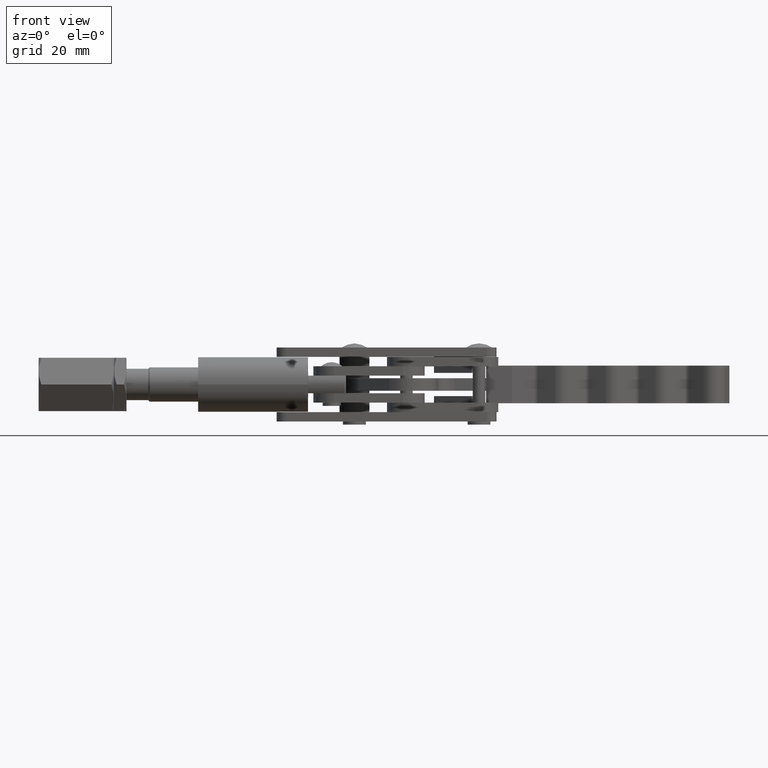
[diagram: clean part render]
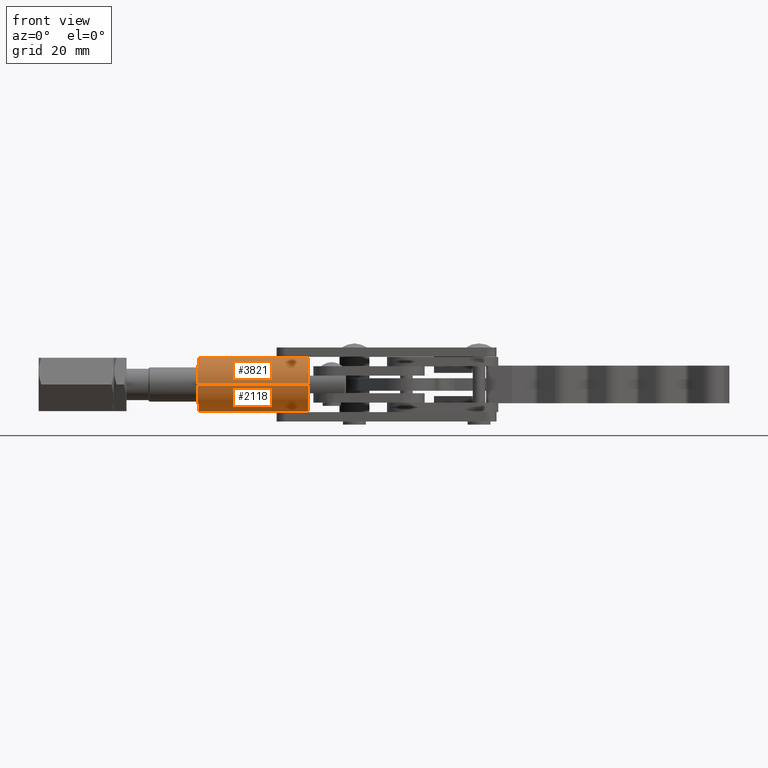
[diagram: same view with one multi-face feature highlighted, each face labeled with its STEP entity id]
A machine part, front view. The highlighted faces form ONE feature: a constant-radius fillet chain: 2 tangent blend faces with common blend radius 8.75 mm. The faces share edges in the B-rep.
Their STEP definitions:
[1] entity #3821 (Cylinder):
#65 = VERTEX_POINT ( 'NONE', #7071 ) ;
#146 = DIRECTION ( 'NONE',  ( 0.0000000000000000000, -1.000000000000000000, 0.0000000000000000000 ) ) ;
#166 = CARTESIAN_POINT ( 'NONE',  ( 9.900000000000005700, 12.99999999999998200, -11.79999999999999900 ) ) ;
#307 = ORIENTED_EDGE ( 'NONE', *, *, #3061, .F. ) ;
#926 = EDGE_CURVE ( 'NONE', #962, #65, #5281, .T. ) ;
#962 = VERTEX_POINT ( 'NONE', #2540 ) ;
#1153 = VECTOR ( 'NONE', #2918, 1000.000000000000000 ) ;
#1215 = CARTESIAN_POINT ( 'NONE',  ( -25.09999999999999800, 21.74999999999998600, -11.79999999999999900 ) ) ;
#1247 = DIRECTION ( 'NONE',  ( -1.000000000000000000, 0.0000000000000000000, -0.0000000000000000000 ) ) ;
#1673 = FACE_OUTER_BOUND ( 'NONE', #4795, .T. ) ;
#1833 = ORIENTED_EDGE ( 'NONE', *, *, #5433, .T. ) ;
#2102 = VERTEX_POINT ( 'NONE', #5338 ) ;
#2332 = DIRECTION ( 'NONE',  ( -1.000000000000000000, 0.0000000000000000000, -0.0000000000000000000 ) ) ;
#2540 = CARTESIAN_POINT ( 'NONE',  ( 9.900000000000005700, 30.49999999999998600, -11.79999999999999900 ) ) ;
#2615 = CARTESIAN_POINT ( 'NONE',  ( -25.09999999999999800, 12.99999999999998200, -11.79999999999999900 ) ) ;
#2636 = CARTESIAN_POINT ( 'NONE',  ( 9.900000000000005700, 21.74999999999998600, -11.79999999999999900 ) ) ;
#2813 = CIRCLE ( 'NONE', #3124, 8.750000000000000000 ) ;
#2918 = DIRECTION ( 'NONE',  ( -1.000000000000000000, 0.0000000000000000000, -0.0000000000000000000 ) ) ;
#3061 = EDGE_CURVE ( 'NONE', #962, #2102, #2813, .T. ) ;
#3124 = AXIS2_PLACEMENT_3D ( 'NONE', #2636, #6163, #7618 ) ;
#3215 = ORIENTED_EDGE ( 'NONE', *, *, #926, .T. ) ;
#3821 = ADVANCED_FACE ( 'NONE', ( #1673 ), #7479, .T. ) ;
#3822 = VERTEX_POINT ( 'NONE', #2615 ) ;
#4011 = VECTOR ( 'NONE', #2332, 1000.000000000000000 ) ;
#4654 = CARTESIAN_POINT ( 'NONE',  ( 9.900000000000005700, 21.74999999999998600, -11.79999999999999900 ) ) ;
#4750 = EDGE_CURVE ( 'NONE', #2102, #3822, #6213, .T. ) ;
#4795 = EDGE_LOOP ( 'NONE', ( #307, #3215, #1833, #5929 ) ) ;
#5281 = LINE ( 'NONE', #7543, #4011 ) ;
#5338 = CARTESIAN_POINT ( 'NONE',  ( 9.900000000000005700, 12.99999999999998200, -11.79999999999999900 ) ) ;
#5433 = EDGE_CURVE ( 'NONE', #65, #3822, #6927, .T. ) ;
#5929 = ORIENTED_EDGE ( 'NONE', *, *, #4750, .F. ) ;
#6163 = DIRECTION ( 'NONE',  ( 1.000000000000000000, 0.0000000000000000000, 0.0000000000000000000 ) ) ;
#6205 = AXIS2_PLACEMENT_3D ( 'NONE', #1215, #7075, #7313 ) ;
#6213 = LINE ( 'NONE', #166, #1153 ) ;
#6905 = AXIS2_PLACEMENT_3D ( 'NONE', #4654, #1247, #146 ) ;
#6927 = CIRCLE ( 'NONE', #6205, 8.750000000000000000 ) ;
#7071 = CARTESIAN_POINT ( 'NONE',  ( -25.09999999999999800, 30.49999999999998600, -11.79999999999999900 ) ) ;
#7075 = DIRECTION ( 'NONE',  ( 1.000000000000000000, 0.0000000000000000000, 0.0000000000000000000 ) ) ;
#7313 = DIRECTION ( 'NONE',  ( 0.0000000000000000000, 1.000000000000000000, 0.0000000000000000000 ) ) ;
#7479 = CYLINDRICAL_SURFACE ( 'NONE', #6905, 8.750000000000001800 ) ;
#7543 = CARTESIAN_POINT ( 'NONE',  ( 9.900000000000005700, 30.49999999999998600, -11.79999999999999900 ) ) ;
#7618 = DIRECTION ( 'NONE',  ( 0.0000000000000000000, 1.000000000000000000, 0.0000000000000000000 ) ) ;
[2] entity #2118 (Cylinder):
#65 = VERTEX_POINT ( 'NONE', #7071 ) ;
#160 = AXIS2_PLACEMENT_3D ( 'NONE', #7549, #1496, #2832 ) ;
#166 = CARTESIAN_POINT ( 'NONE',  ( 9.900000000000005700, 12.99999999999998200, -11.79999999999999900 ) ) ;
#926 = EDGE_CURVE ( 'NONE', #962, #65, #5281, .T. ) ;
#962 = VERTEX_POINT ( 'NONE', #2540 ) ;
#1039 = AXIS2_PLACEMENT_3D ( 'NONE', #1732, #3305, #7043 ) ;
#1153 = VECTOR ( 'NONE', #2918, 1000.000000000000000 ) ;
#1282 = ORIENTED_EDGE ( 'NONE', *, *, #4750, .T. ) ;
#1496 = DIRECTION ( 'NONE',  ( 1.000000000000000000, 0.0000000000000000000, 0.0000000000000000000 ) ) ;
#1607 = EDGE_CURVE ( 'NONE', #2102, #962, #7181, .T. ) ;
#1732 = CARTESIAN_POINT ( 'NONE',  ( 9.900000000000005700, 21.74999999999998600, -11.79999999999999900 ) ) ;
#2102 = VERTEX_POINT ( 'NONE', #5338 ) ;
#2118 = ADVANCED_FACE ( 'NONE', ( #2880 ), #7117, .T. ) ;
#2332 = DIRECTION ( 'NONE',  ( -1.000000000000000000, 0.0000000000000000000, -0.0000000000000000000 ) ) ;
#2540 = CARTESIAN_POINT ( 'NONE',  ( 9.900000000000005700, 30.49999999999998600, -11.79999999999999900 ) ) ;
#2615 = CARTESIAN_POINT ( 'NONE',  ( -25.09999999999999800, 12.99999999999998200, -11.79999999999999900 ) ) ;
#2832 = DIRECTION ( 'NONE',  ( 0.0000000000000000000, 1.000000000000000000, 0.0000000000000000000 ) ) ;
#2880 = FACE_OUTER_BOUND ( 'NONE', #5870, .T. ) ;
#2918 = DIRECTION ( 'NONE',  ( -1.000000000000000000, 0.0000000000000000000, -0.0000000000000000000 ) ) ;
#3079 = ORIENTED_EDGE ( 'NONE', *, *, #1607, .F. ) ;
#3206 = AXIS2_PLACEMENT_3D ( 'NONE', #5693, #3675, #4536 ) ;
#3284 = CIRCLE ( 'NONE', #3206, 8.750000000000000000 ) ;
#3305 = DIRECTION ( 'NONE',  ( -1.000000000000000000, 0.0000000000000000000, -0.0000000000000000000 ) ) ;
#3675 = DIRECTION ( 'NONE',  ( 1.000000000000000000, 0.0000000000000000000, 0.0000000000000000000 ) ) ;
#3822 = VERTEX_POINT ( 'NONE', #2615 ) ;
#4011 = VECTOR ( 'NONE', #2332, 1000.000000000000000 ) ;
#4536 = DIRECTION ( 'NONE',  ( 0.0000000000000000000, 1.000000000000000000, 0.0000000000000000000 ) ) ;
#4636 = ORIENTED_EDGE ( 'NONE', *, *, #6680, .T. ) ;
#4750 = EDGE_CURVE ( 'NONE', #2102, #3822, #6213, .T. ) ;
#5281 = LINE ( 'NONE', #7543, #4011 ) ;
#5338 = CARTESIAN_POINT ( 'NONE',  ( 9.900000000000005700, 12.99999999999998200, -11.79999999999999900 ) ) ;
#5693 = CARTESIAN_POINT ( 'NONE',  ( -25.09999999999999800, 21.74999999999998600, -11.79999999999999900 ) ) ;
#5870 = EDGE_LOOP ( 'NONE', ( #6051, #3079, #1282, #4636 ) ) ;
#6051 = ORIENTED_EDGE ( 'NONE', *, *, #926, .F. ) ;
#6213 = LINE ( 'NONE', #166, #1153 ) ;
#6680 = EDGE_CURVE ( 'NONE', #3822, #65, #3284, .T. ) ;
#7043 = DIRECTION ( 'NONE',  ( 0.0000000000000000000, -1.000000000000000000, 0.0000000000000000000 ) ) ;
#7071 = CARTESIAN_POINT ( 'NONE',  ( -25.09999999999999800, 30.49999999999998600, -11.79999999999999900 ) ) ;
#7117 = CYLINDRICAL_SURFACE ( 'NONE', #1039, 8.750000000000001800 ) ;
#7181 = CIRCLE ( 'NONE', #160, 8.750000000000000000 ) ;
#7543 = CARTESIAN_POINT ( 'NONE',  ( 9.900000000000005700, 30.49999999999998600, -11.79999999999999900 ) ) ;
#7549 = CARTESIAN_POINT ( 'NONE',  ( 9.900000000000005700, 21.74999999999998600, -11.79999999999999900 ) ) ;